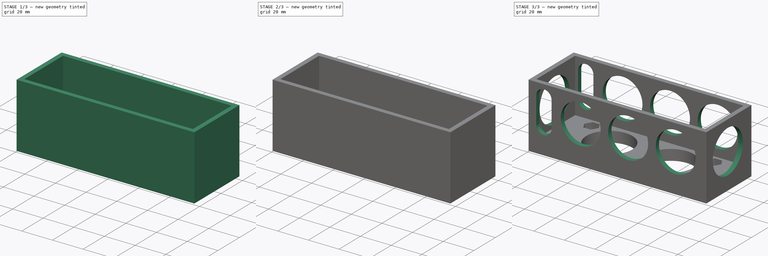
[diagram: build sequence overview — one tinted view per stage of 3, left to right]
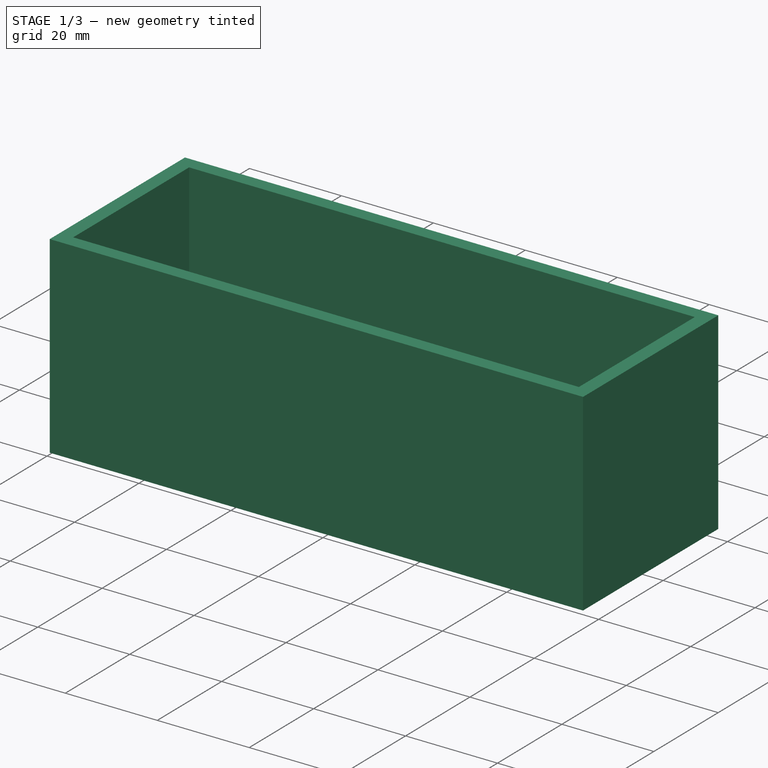
[diagram: stage 1 of 3 — iso view after this stage's code; geometry added in this stage tinted green]
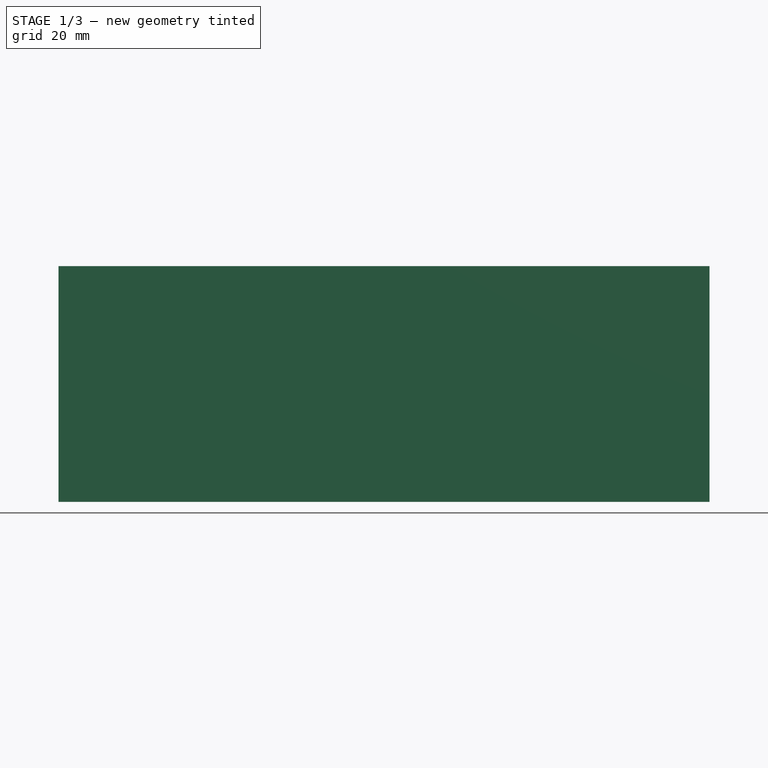
[diagram: stage 1 of 3 — front view after this stage's code; geometry added in this stage tinted green]
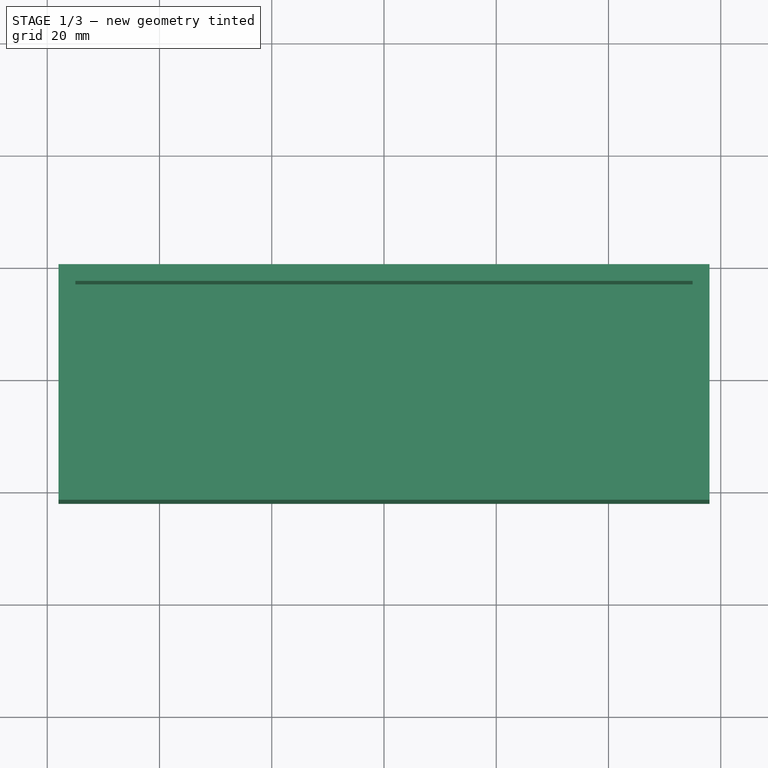
[diagram: stage 1 of 3 — top view after this stage's code; geometry added in this stage tinted green]
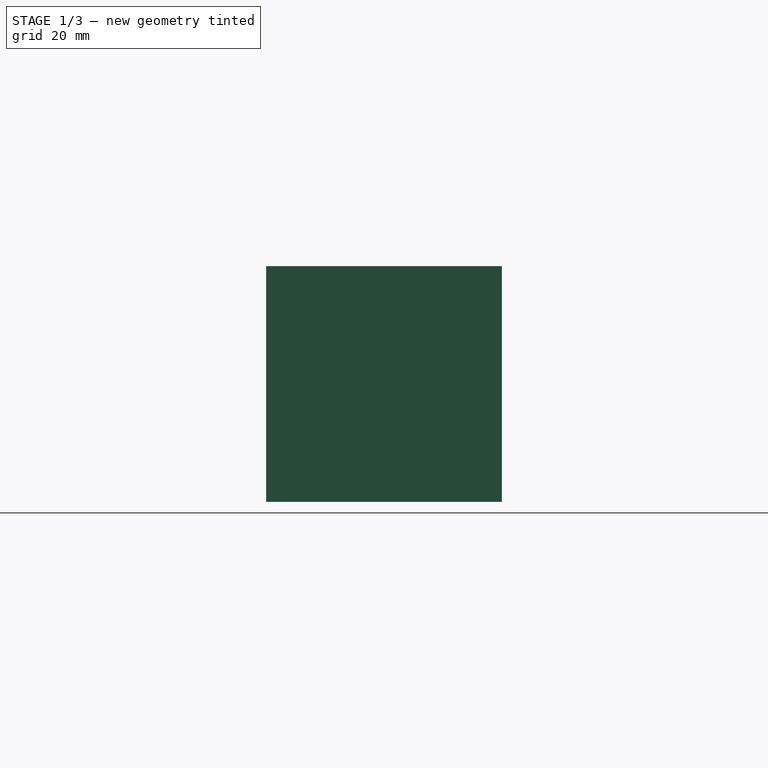
[diagram: stage 1 of 3 — right view after this stage's code; geometry added in this stage tinted green]
FCSTD DOCUMENT  (FreeCAD 0.14R3700 (Git))
Label: BattBox4
License: CC-BY 3.0
LicenseURL: http://creativecommons.org/licenses/by/3.0/
objects: Sketcher::SketchObject×6, PartDesign::Pocket×5, PartDesign::Pad×1
note: 18 computed .brp shape members not serialized (recipe doc carries the construction recipe); baked Part::Feature solids carry a one-line shape summary decoded from their .brp

FEATURE [Sketcher::SketchObject] Sketch  label="Top"
  Placement = pos=(0,0,0) rot=(1,0,0;1.5708rad)
  sketch-geometry (4):
    g0: LineSegment StartX=-58 StartY=0 StartZ=0 EndX=58 EndY=0 EndZ=0
    g1: LineSegment StartX=58 StartY=0 StartZ=0 EndX=58 EndY=42 EndZ=0
    g2: LineSegment StartX=58 StartY=42 StartZ=0 EndX=-58 EndY=42 EndZ=0
    g3: LineSegment StartX=-58 StartY=42 StartZ=0 EndX=-58 EndY=0 EndZ=0
  constraints (12):
    c: Coincident(g0,g1)
    c: Coincident(g1,g2)
    c: Coincident(g2,g3)
    c: Coincident(g3,g0)
    c: Horizontal(g0)
    c: Horizontal(g2)
    c: Vertical(g1)
    c: Vertical(g3)
    c: DistanceX(g2,g1) = 116
    c: DistanceX(g-1,g0) = 58
    c: DistanceY(g0,g1) = 42
    c: DistanceY(g-1,g0) = 0
FEATURE [PartDesign::Pad] Pad
  Length = 42
  Length2 = 20
  Placement = pos=(0,0,0) rot=(1,0,0;1.5708rad)
  Sketch = -> Sketch
  Type = 0
FEATURE [Sketcher::SketchObject] Sketch005  label="Bottom"
  ExternalGeometry = -> [Pad]
  Placement = pos=(0,0,42) rot=(0,0,1;3.14159rad)
  Support = -> Pad [Face3]
  sketch-geometry (4):
    g0: LineSegment StartX=-55 StartY=39 StartZ=0 EndX=55 EndY=39 EndZ=0
    g1: LineSegment StartX=55 StartY=39 StartZ=0 EndX=55 EndY=3 EndZ=0
    g2: LineSegment StartX=55 StartY=3 StartZ=0 EndX=-55 EndY=3 EndZ=0
    g3: LineSegment StartX=-55 StartY=3 StartZ=0 EndX=-55 EndY=39 EndZ=0
  constraints (12):
    c: Coincident(g0,g1)
    c: Coincident(g1,g2)
    c: Coincident(g2,g3)
    c: Coincident(g3,g0)
    c: Horizontal(g0)
    c: Horizontal(g2)
    c: Vertical(g1)
    c: Vertical(g3)
    c: DistanceY(g-5,g0) = -3
    c: DistanceX(g-5,g0) = -3
    c: DistanceY(g1,g-3) = -3
    c: DistanceX(g-4,g2) = 3
FEATURE [PartDesign::Pocket] Pocket
  Length = 35
  Placement = pos=(0,0,0) rot=(1,0,0;1.5708rad)
  Sketch = -> Sketch005
  Type = 0
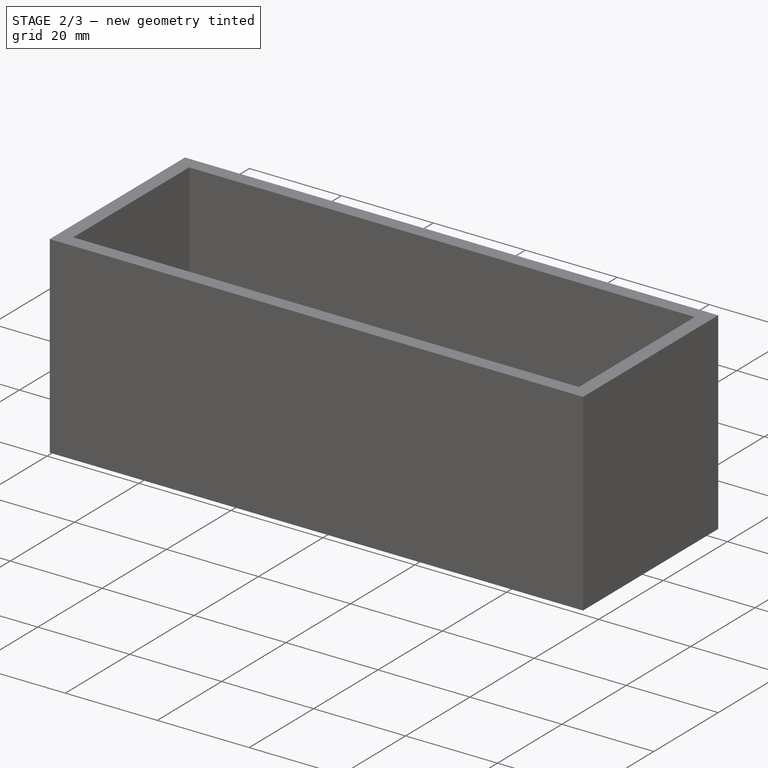
[diagram: stage 2 of 3 — iso view after this stage's code; geometry added in this stage tinted green]
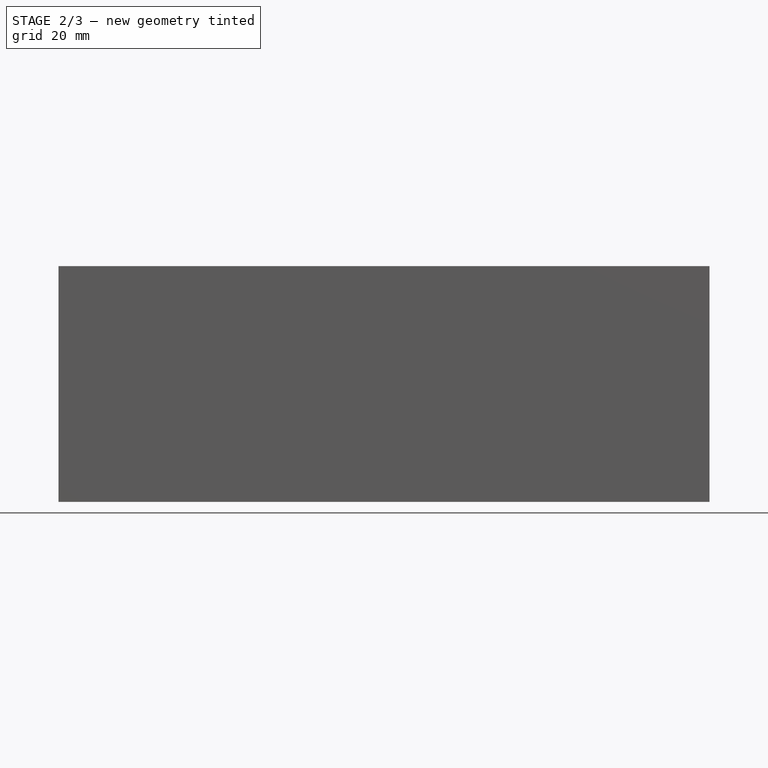
[diagram: stage 2 of 3 — front view after this stage's code; geometry added in this stage tinted green]
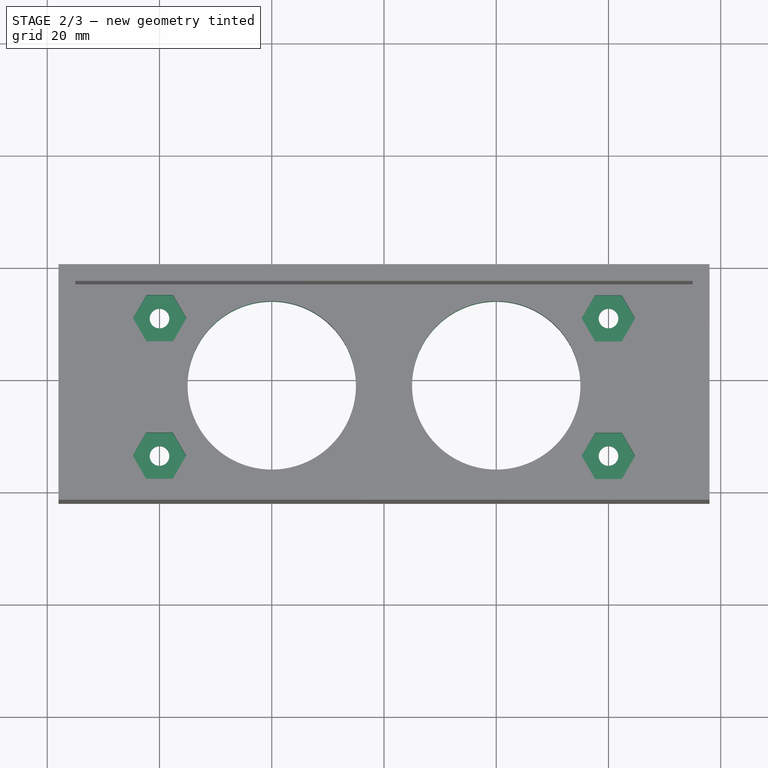
[diagram: stage 2 of 3 — top view after this stage's code; geometry added in this stage tinted green]
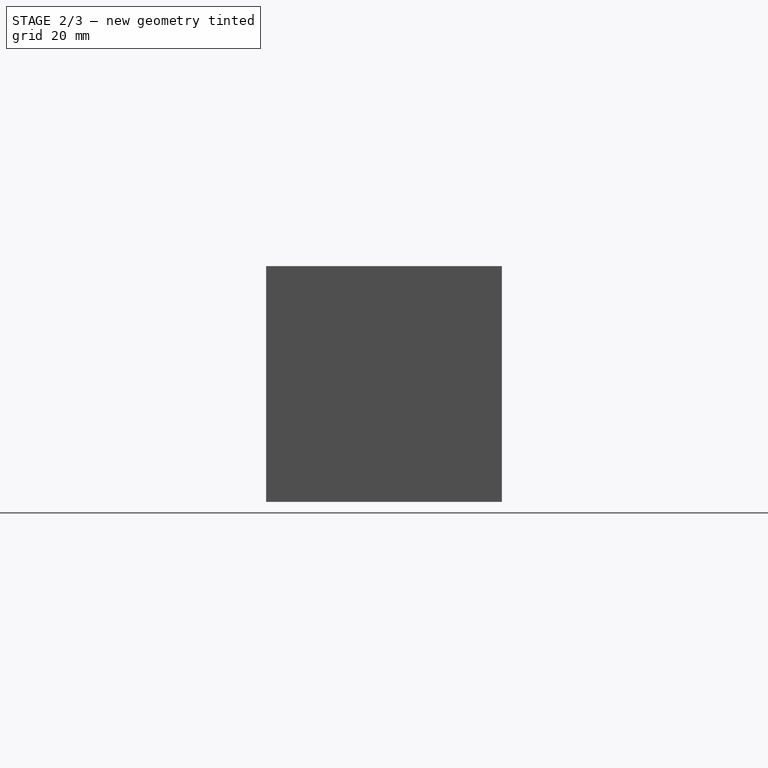
[diagram: stage 2 of 3 — right view after this stage's code; geometry added in this stage tinted green]
FEATURE [Sketcher::SketchObject] Sketch006  label="Back Cut out"
  Placement = pos=(0,0,7) rot=(0,0,1;3.14159rad)
  Support = -> Pocket [Face11]
  sketch-geometry (6):
    g0: Circle CenterX=-40 CenterY=33.5 CenterZ=0 NormalX=0 NormalY=0 NormalZ=1 Radius=1.75
    g1: Circle CenterX=40 CenterY=33.5 CenterZ=0 NormalX=0 NormalY=0 NormalZ=1 Radius=1.75
    g2: Circle CenterX=-40 CenterY=9 CenterZ=0 NormalX=0 NormalY=0 NormalZ=1 Radius=1.75
    g3: Circle CenterX=40 CenterY=9 CenterZ=0 NormalX=0 NormalY=0 NormalZ=1 Radius=1.75
    g4: Circle CenterX=-20 CenterY=21 CenterZ=0 NormalX=0 NormalY=0 NormalZ=1 Radius=15
    g5: Circle CenterX=20 CenterY=21 CenterZ=0 NormalX=0 NormalY=0 NormalZ=1 Radius=15
  constraints (4):
    c: DistanceY(g-1,g2) = 9
    c: DistanceY(g2,g0) = 24.5
    c: DistanceY(g-1,g3) = 9
    c: DistanceY(g3,g1) = 24.5
FEATURE [PartDesign::Pocket] Pocket001
  Length = 5
  Placement = pos=(0,0,0) rot=(1,0,0;1.5708rad)
  Sketch = -> Sketch006
  Type = 1
FEATURE [Sketcher::SketchObject] Sketch011  label="nut cut out - 2"
  Placement = pos=(0,0,7) rot=(0,0,1;3.14159rad)
  Support = -> Pocket001 [Face13]
  sketch-geometry (28):
    g0: Circle [constr] CenterX=-39.9946 CenterY=33.5596 CenterZ=0 NormalX=0 NormalY=0 NormalZ=1 Radius=4.12
    g1: LineSegment StartX=-42.3733 StartY=37.6796 StartZ=0 EndX=-37.6159 EndY=37.6796 EndZ=0
    g2: LineSegment StartX=-37.6159 StartY=37.6796 StartZ=0 EndX=-35.2372 EndY=33.5596 EndZ=0
    g3: LineSegment StartX=-35.2372 StartY=33.5596 StartZ=0 EndX=-37.6159 EndY=29.4396 EndZ=0
    g4: LineSegment StartX=-37.6159 StartY=29.4396 StartZ=0 EndX=-42.3733 EndY=29.4396 EndZ=0
    g5: LineSegment StartX=-42.3733 StartY=29.4396 StartZ=0 EndX=-44.752 EndY=33.5596 EndZ=0
    g6: LineSegment StartX=-44.752 StartY=33.5596 StartZ=0 EndX=-42.3733 EndY=37.6796 EndZ=0
    g7: Circle [constr] CenterX=40.0059 CenterY=33.5213 CenterZ=0 NormalX=0 NormalY=0 NormalZ=1 Radius=4.12
    g8: LineSegment StartX=37.6272 StartY=37.6414 StartZ=0 EndX=42.3845 EndY=37.6414 EndZ=0
    g9: LineSegment StartX=42.3845 StartY=37.6414 StartZ=0 EndX=44.7632 EndY=33.5213 EndZ=0
    g10: LineSegment StartX=44.7632 StartY=33.5213 StartZ=0 EndX=42.3845 EndY=29.4014 EndZ=0
    g11: LineSegment StartX=42.3845 StartY=29.4014 StartZ=0 EndX=37.6272 EndY=29.4014 EndZ=0
    g12: LineSegment StartX=37.6272 StartY=29.4014 StartZ=0 EndX=35.2485 EndY=33.5213 EndZ=0
    g13: LineSegment StartX=35.2485 StartY=33.5213 StartZ=0 EndX=37.6272 EndY=37.6414 EndZ=0
    g14: Circle [constr] CenterX=39.9538 CenterY=9.02135 CenterZ=0 NormalX=0 NormalY=0 NormalZ=1 Radius=4.12
    g15: LineSegment StartX=37.5751 StartY=13.1413 StartZ=0 EndX=42.3325 EndY=13.1413 EndZ=0
    g16: LineSegment StartX=42.3325 StartY=13.1413 StartZ=0 EndX=44.7112 EndY=9.02135 EndZ=0
    g17: LineSegment StartX=44.7112 StartY=9.02135 StartZ=0 EndX=42.3325 EndY=4.90135 EndZ=0
    g18: LineSegment StartX=42.3325 StartY=4.90135 StartZ=0 EndX=37.5751 EndY=4.90135 EndZ=0
    g19: LineSegment StartX=37.5751 StartY=4.90135 StartZ=0 EndX=35.1964 EndY=9.02135 EndZ=0
    g20: LineSegment StartX=35.1964 StartY=9.02135 StartZ=0 EndX=37.5751 EndY=13.1413 EndZ=0
    g21: Circle [constr] CenterX=-39.9892 CenterY=9.05959 CenterZ=0 NormalX=0 NormalY=0 NormalZ=1 Radius=4.12
    g22: LineSegment StartX=-42.3678 StartY=13.1796 StartZ=0 EndX=-37.6105 EndY=13.1796 EndZ=0
    g23: LineSegment StartX=-37.6105 StartY=13.1796 StartZ=0 EndX=-35.2318 EndY=9.05959 EndZ=0
    g24: LineSegment StartX=-35.2318 StartY=9.05959 StartZ=0 EndX=-37.6105 EndY=4.93959 EndZ=0
    g25: LineSegment StartX=-37.6105 StartY=4.93959 StartZ=0 EndX=-42.3678 EndY=4.93959 EndZ=0
    g26: LineSegment StartX=-42.3678 StartY=4.93959 StartZ=0 EndX=-44.7465 EndY=9.05959 EndZ=0
    g27: LineSegment StartX=-44.7465 StartY=9.05959 StartZ=0 EndX=-42.3678 EndY=13.1796 EndZ=0
  constraints (86):
    c: Horizontal(g1)
    c: Horizontal(g4)
    c: Coincident(g1,g2)
    c: Coincident(g1,g6)
    c: Coincident(g5,g6)
    c: Coincident(g4,g5)
    c: Coincident(g3,g4)
    c: Coincident(g2,g3)
    c: Tangent(g0,g1)
    c: Tangent(g2,g0)
    c: Tangent(g3,g0)
    c: Tangent(g4,g0)
    c: Tangent(g5,g0)
    c: Tangent(g6,g0)
    c: Equal(g6,g1)
    c: Equal(g1,g2)
    c: Equal(g2,g3)
    c: Equal(g3,g4)
    c: Equal(g4,g5)
    c: Coincident(g22,g23)
    c: Coincident(g23,g24)
    c: Coincident(g24,g25)
    c: Coincident(g25,g26)
    c: Coincident(g26,g27)
    c: Coincident(g27,g22)
    c: Horizontal(g22)
    c: Horizontal(g25)
    c: Tangent(g21,g22)
    c: Tangent(g23,g21)
    c: Tangent(g24,g21)
    c: Tangent(g25,g21)
    c: Tangent(g26,g21)
    c: Tangent(g27,g21)
    c: Equal(g23,g22)
    c: Equal(g22,g24)
    c: Equal(g24,g25)
    c: Equal(g25,g26)
    c: Equal(g26,g27)
    c: Radius(g21) = 4.12
    c: Radius(g0) = 4.12
    c: Tangent(g8,g7)
    c: Tangent(g13,g7)
    c: Tangent(g12,g7)
    c: Tangent(g11,g7)
    c: Tangent(g10,g7)
    c: Tangent(g9,g7)
    c: Horizontal(g8)
    c: Horizontal(g11)
    c: Equal(g12,g13)
    c: Equal(g13,g8)
    c: Equal(g8,g9)
    c: Equal(g9,g10)
    c: Equal(g10,g11)
    c: Radius(g7) = 4.12
    c: Horizontal(g15)
    c: Horizontal(g18)
    c: Tangent(g14,g15)
    c: Tangent(g20,g14)
    c: Tangent(g19,g14)
    c: Tangent(g18,g14)
    c: Tangent(g14,g17)
    c: Tangent(g16,g14)
    c: Equal(g15,g20)
    c: Equal(g15,g16)
    c: Coincident(g15,g20)
    c: Coincident(g15,g16)
    c: Coincident(g16,g17)
    c: Coincident(g17,g18)
    c: Coincident(g18,g19)
    c: Coincident(g19,g20)
    c: Equal(g17,g16)
    c: Equal(g18,g19)
    c: Equal(g20,g19)
    c: Radius(g14) = 4.12
    c: Coincident(g12,g13)
    c: Coincident(g8,g13)
    c: Coincident(g8,g9)
    c: Coincident(g9,g10)
    c: Coincident(g10,g11)
    c: Coincident(g11,g12)
    c: DistanceX(g21) = -39.9892
    c: DistanceY(g21) = 9.05959
    c: DistanceX(g14) = 39.9538
    c: DistanceY(g14) = 9.02135
    c: DistanceY(g0,g21) = -24.5
    c: DistanceY(g7,g14) = -24.5
FEATURE [PartDesign::Pocket] Pocket002
  Length = 5
  Placement = pos=(0,0,0) rot=(1,0,0;1.5708rad)
  Sketch = -> Sketch011
  Type = 0
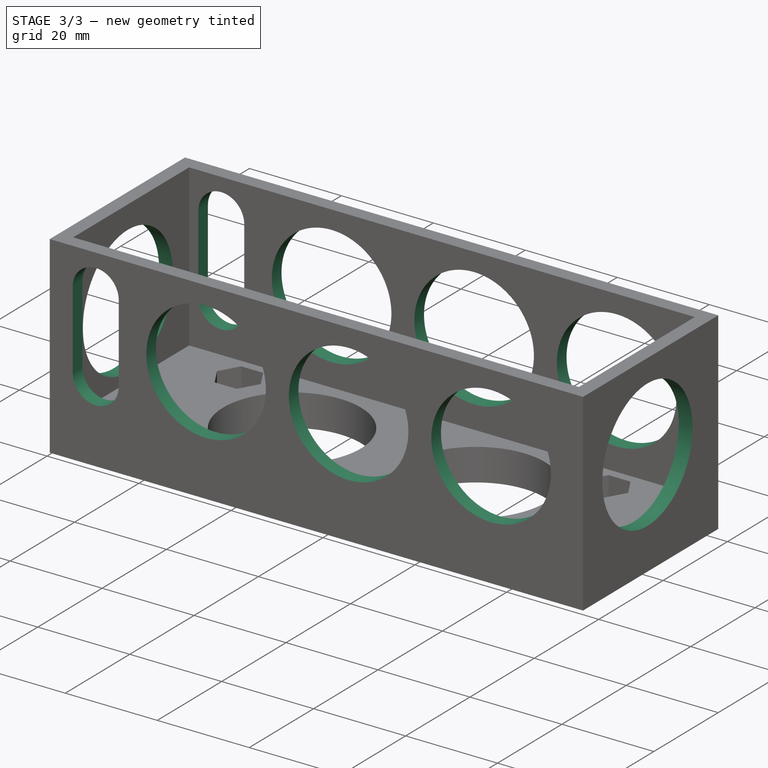
[diagram: stage 3 of 3 — iso view after this stage's code; geometry added in this stage tinted green]
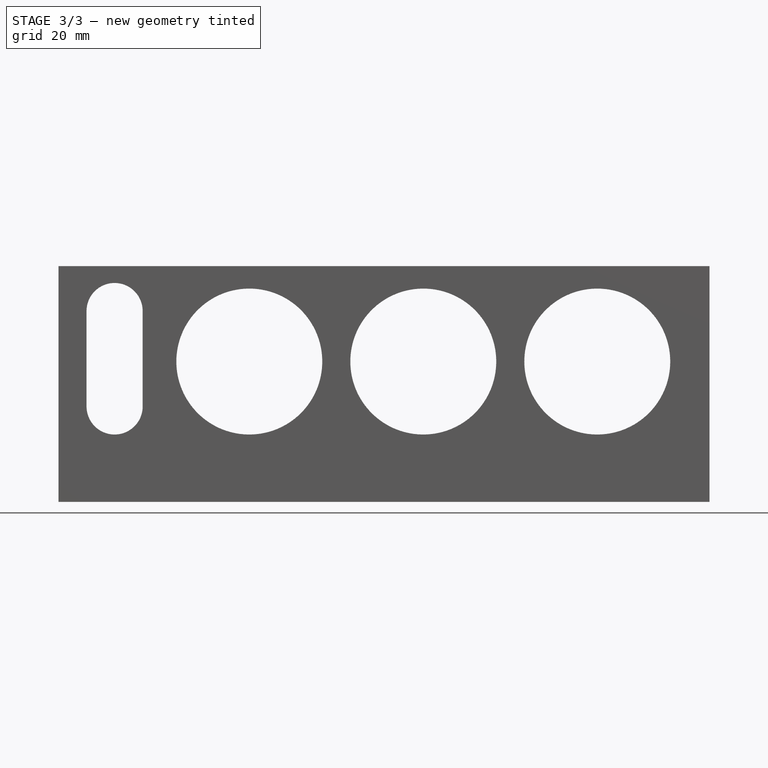
[diagram: stage 3 of 3 — front view after this stage's code; geometry added in this stage tinted green]
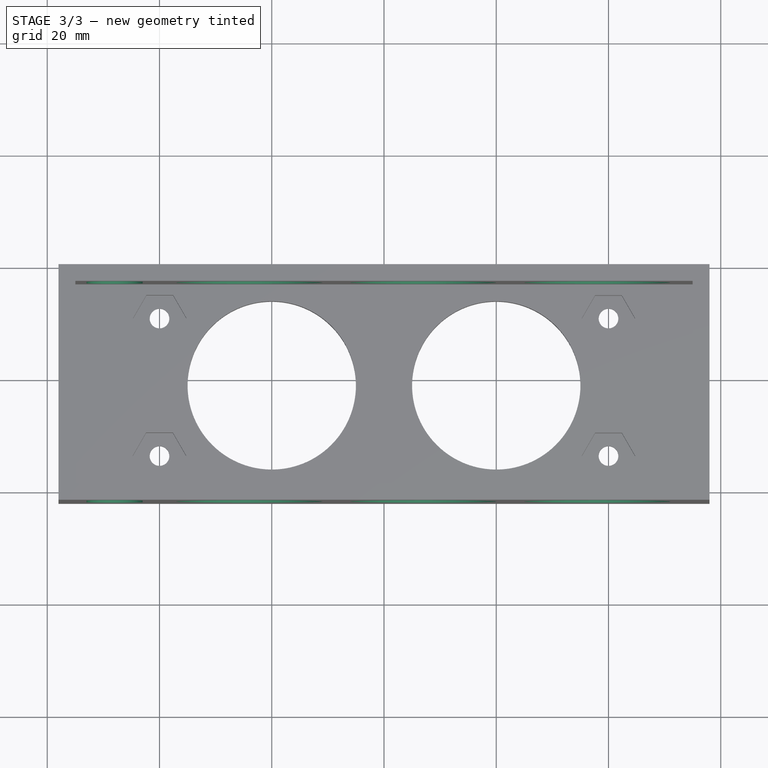
[diagram: stage 3 of 3 — top view after this stage's code; geometry added in this stage tinted green]
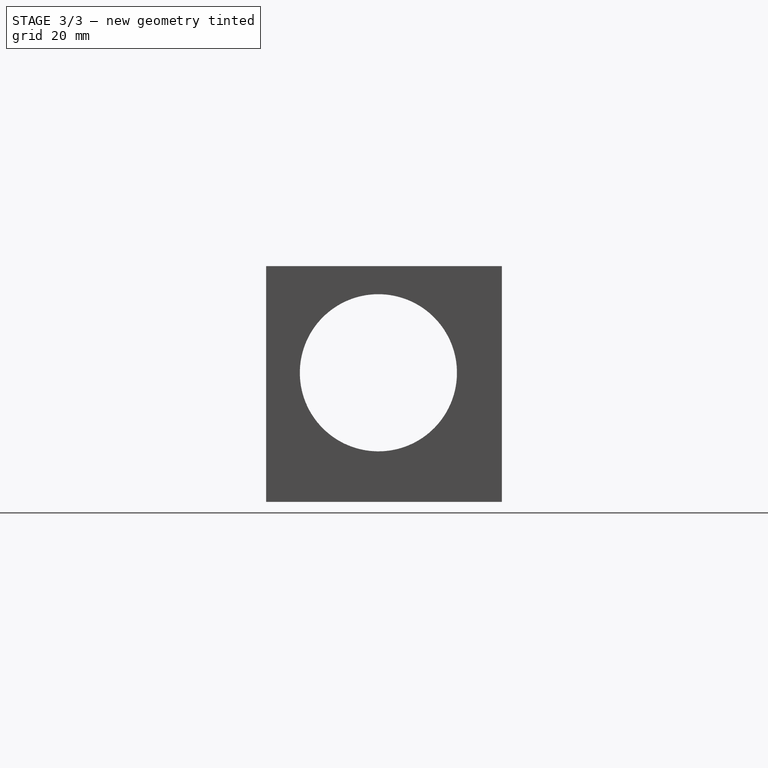
[diagram: stage 3 of 3 — right view after this stage's code; geometry added in this stage tinted green]
FEATURE [Sketcher::SketchObject] Sketch007  label="top cutouts"
  Placement = pos=(0,0,0) rot=(-1,0,0;1.5708rad)
  Support = -> Pocket002 [Face3]
  sketch-geometry (7):
    g0: Circle CenterX=-24 CenterY=-25 CenterZ=0 NormalX=0 NormalY=0 NormalZ=1 Radius=13
    g1: Circle CenterX=7 CenterY=-25 CenterZ=0 NormalX=0 NormalY=0 NormalZ=1 Radius=13
    g2: Circle CenterX=38 CenterY=-25 CenterZ=0 NormalX=0 NormalY=0 NormalZ=1 Radius=13
    g3: ArcOfCircle CenterX=-48 CenterY=-17 CenterZ=0 NormalX=0 NormalY=0 NormalZ=1 Radius=5 StartAngle=1.727e-06 EndAngle=3.14159
    g4: ArcOfCircle CenterX=-48 CenterY=-34 CenterZ=0 NormalX=0 NormalY=0 NormalZ=1 Radius=5 StartAngle=3.14159 EndAngle=6.28319
    g5: LineSegment StartX=-53 StartY=-17 StartZ=0 EndX=-53 EndY=-34 EndZ=0
    g6: LineSegment StartX=-43 StartY=-17 StartZ=0 EndX=-43 EndY=-34 EndZ=0
FEATURE [PartDesign::Pocket] Pocket003
  Length = 5
  Placement = pos=(0,0,0) rot=(1,0,0;1.5708rad)
  Sketch = -> Sketch007
  Type = 1
FEATURE [Sketcher::SketchObject] Sketch008  label="side cutouts"
  Placement = pos=(-58,0,0) rot=(0.707107,0,-0.707107;3.14159rad)
  Support = -> Pocket003 [Face2]
  sketch-geometry (1):
    g0: Circle CenterX=-23 CenterY=22 CenterZ=0 NormalX=0 NormalY=0 NormalZ=1 Radius=14
FEATURE [PartDesign::Pocket] Pocket004
  Length = 5
  Placement = pos=(0,0,0) rot=(1,0,0;1.5708rad)
  Sketch = -> Sketch008
  Type = 1
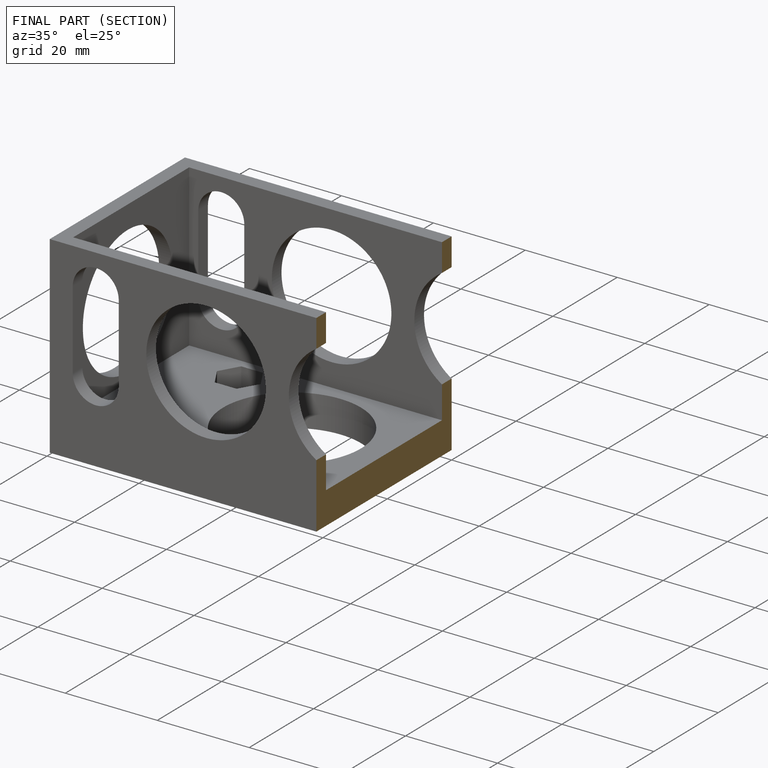
[diagram: finished part — half-section view (interior)]
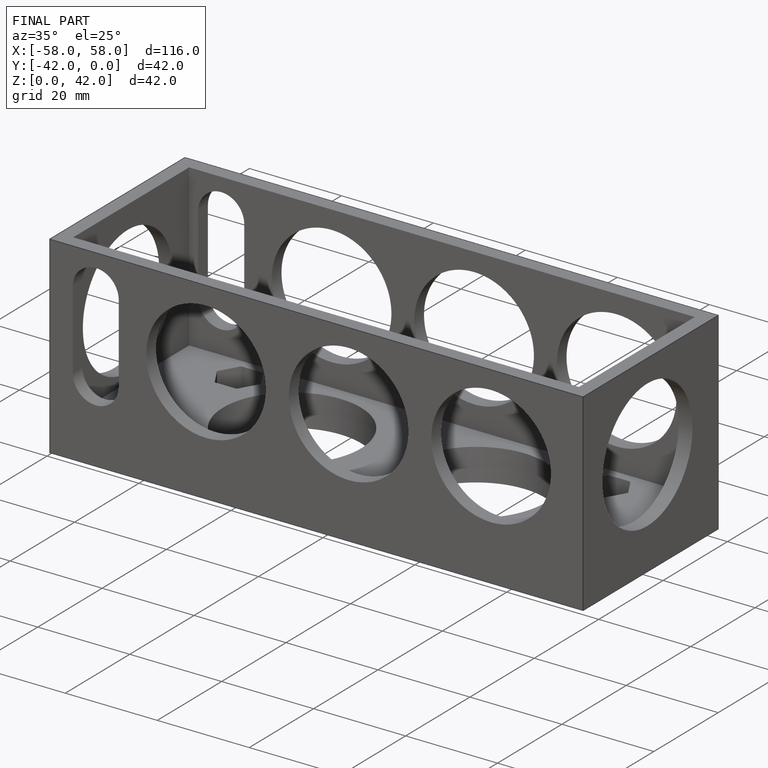
[diagram: finished part — iso view with bounding-box wireframe]
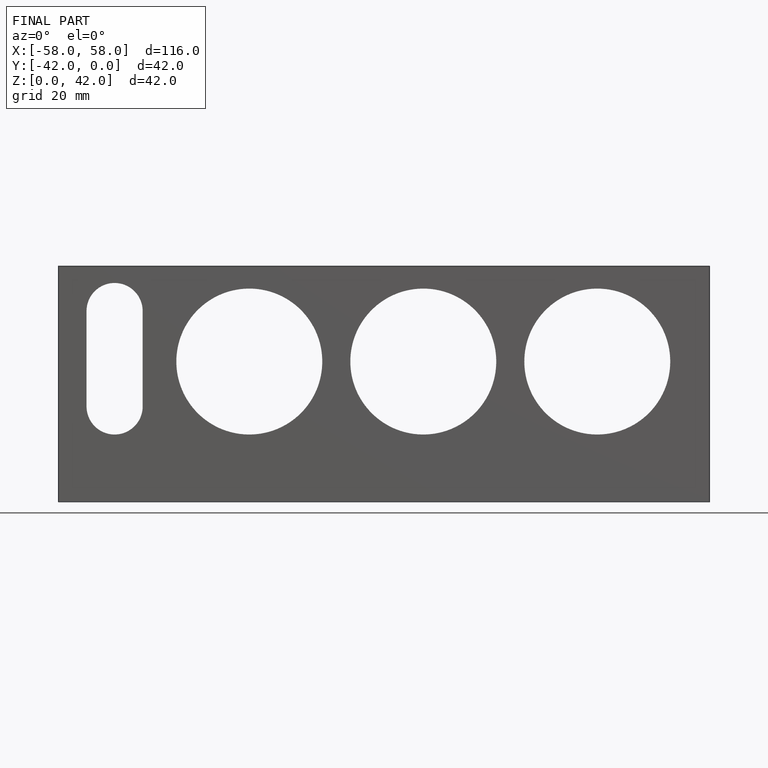
[diagram: finished part — front view with bounding-box wireframe]
